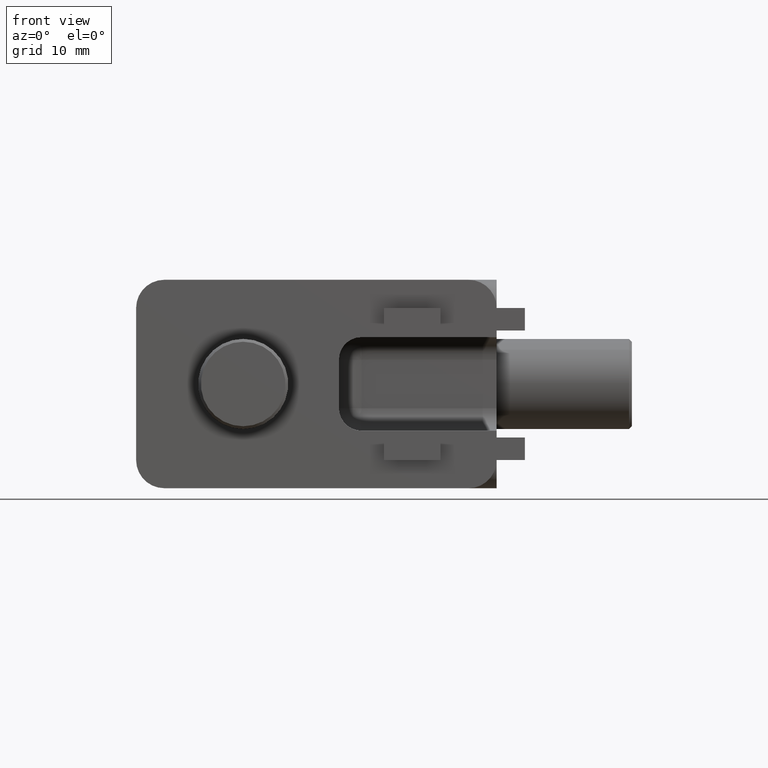
[diagram: clean part render]
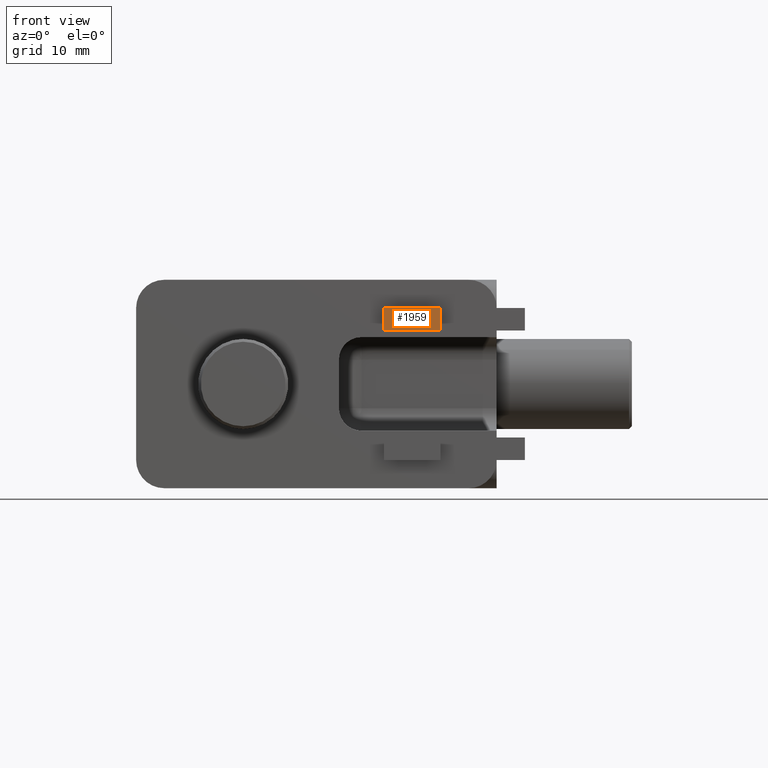
[diagram: same view with one face highlighted and labeled with its STEP entity id]
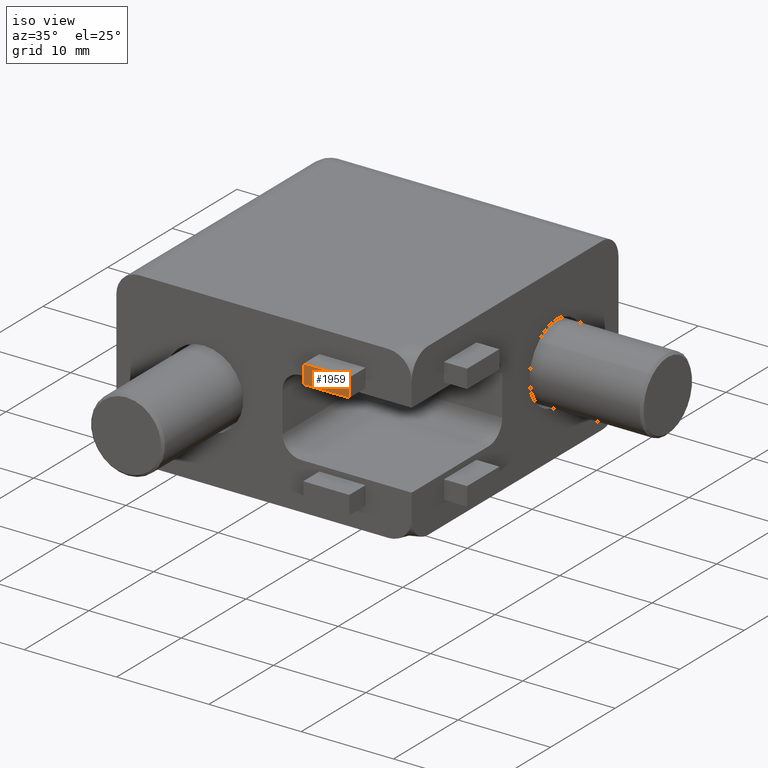
[diagram: same view with one face highlighted and labeled with its STEP entity id]
A machine part, front view. The second image highlights one B-rep face of the part: STEP entity #1959.
A second angle (iso view) of the same face is appended — the face is thin or edge-on in the first view.
In plain terms, the highlighted planar face has unit normal (-0, -1, 0).
Its self-contained STEP definition (entity closure, byte-faithful):
#81=PLANE('',#2150);
#186=FACE_OUTER_BOUND('',#311,.T.);
#311=EDGE_LOOP('',(#1593,#1594,#1595,#1596));
#476=LINE('',#3267,#650);
#479=LINE('',#3272,#653);
#481=LINE('',#3276,#655);
#482=LINE('',#3278,#656);
#650=VECTOR('',#2565,1000.);
#653=VECTOR('',#2570,1000.);
#655=VECTOR('',#2574,1000.);
#656=VECTOR('',#2577,1000.);
#934=VERTEX_POINT('',#3264);
#935=VERTEX_POINT('',#3266);
#936=VERTEX_POINT('',#3270);
#937=VERTEX_POINT('',#3274);
#1174=EDGE_CURVE('',#934,#935,#476,.T.);
#1177=EDGE_CURVE('',#936,#934,#479,.T.);
#1179=EDGE_CURVE('',#937,#936,#481,.T.);
#1180=EDGE_CURVE('',#935,#937,#482,.T.);
#1593=ORIENTED_EDGE('',*,*,#1174,.F.);
#1594=ORIENTED_EDGE('',*,*,#1177,.F.);
#1595=ORIENTED_EDGE('',*,*,#1179,.F.);
#1596=ORIENTED_EDGE('',*,*,#1180,.F.);
#1959=ADVANCED_FACE('',(#186),#81,.T.);
#2150=AXIS2_PLACEMENT_3D('',#3279,#2578,#2579);
#2565=DIRECTION('',(1.,-3.33066907387547E-15,0.));
#2570=DIRECTION('',(0.,0.,1.));
#2574=DIRECTION('',(-1.,3.33066907387547E-15,0.));
#2577=DIRECTION('',(0.,0.,-1.));
#2578=DIRECTION('center_axis',(-3.5527136788005E-15,-1.,0.));
#2579=DIRECTION('ref_axis',(0.,0.,-1.));
#3264=CARTESIAN_POINT('',(6.72485697219706,-16.4477143550449,6.75));
#3266=CARTESIAN_POINT('',(11.7248569721971,-16.4477143550449,6.75));
#3267=CARTESIAN_POINT('',(6.72485697219706,-16.4477143550449,6.75));
#3270=CARTESIAN_POINT('',(6.72485697219706,-16.4477143550449,4.75));
#3272=CARTESIAN_POINT('',(6.72485697219706,-16.4477143550449,6.75));
#3274=CARTESIAN_POINT('',(11.7248569721971,-16.4477143550449,4.75));
#3276=CARTESIAN_POINT('',(6.72485697219706,-16.4477143550449,4.75));
#3278=CARTESIAN_POINT('',(11.7248569721971,-16.4477143550449,6.75));
#3279=CARTESIAN_POINT('Origin',(11.7248569721971,-16.4477143550449,6.75));